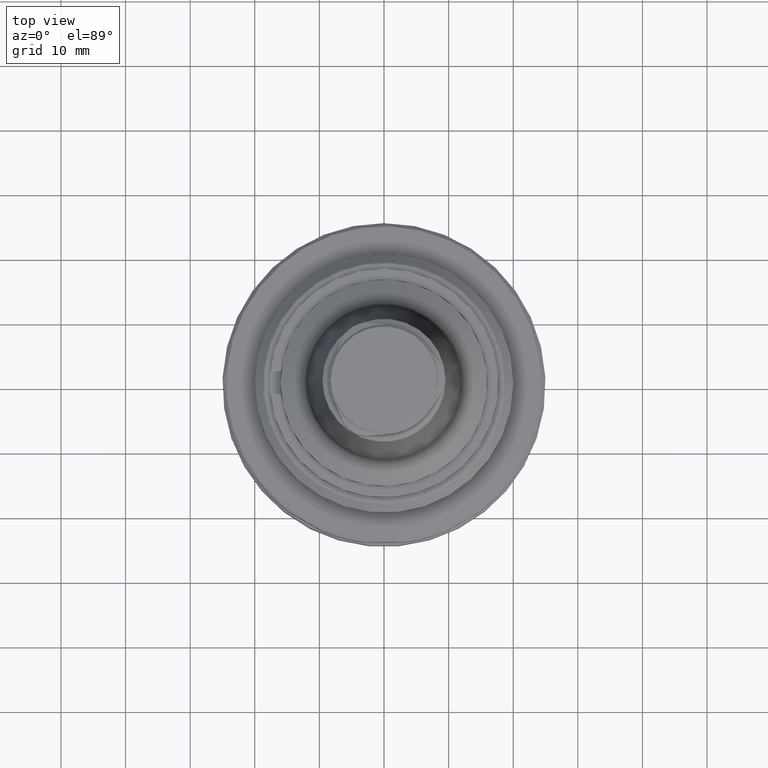
[diagram: clean part render]
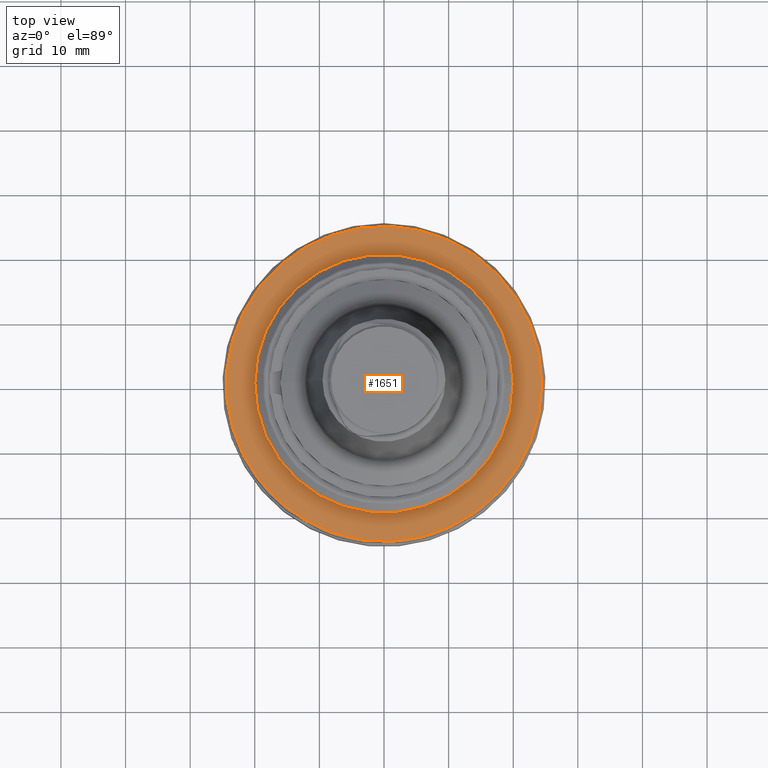
[diagram: same view with one face highlighted and labeled with its STEP entity id]
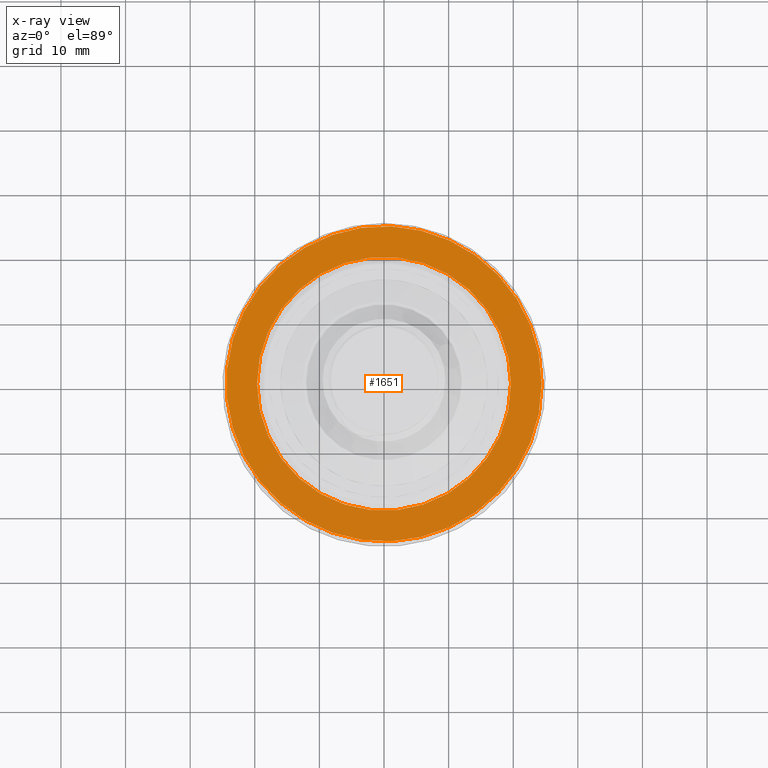
[diagram: x-ray of the same camera — body ghosted, the highlighted face saturated]
A machine part, top view. The second image highlights one B-rep face of the part: STEP entity #1651.
The next image is the same camera in x-ray: the body ghosted, the highlighted face saturated — about 0% of this face is hidden behind the body in this view.
In plain terms, the highlighted planar face has unit normal (-0, -0, -1).
Its self-contained STEP definition (entity closure, byte-faithful):
#39=PLANE('',#1830);
#546=ORIENTED_EDGE('',*,*,#927,.T.);
#547=ORIENTED_EDGE('',*,*,#928,.F.);
#927=EDGE_CURVE('',#1117,#1117,#1228,.T.);
#928=EDGE_CURVE('',#1118,#1118,#1229,.T.);
#1117=VERTEX_POINT('',#2858);
#1118=VERTEX_POINT('',#2861);
#1228=CIRCLE('',#1829,19.65);
#1229=CIRCLE('',#1831,24.3999999999999);
#1351=EDGE_LOOP('',(#546));
#1352=EDGE_LOOP('',(#547));
#1506=FACE_BOUND('',#1351,.T.);
#1507=FACE_BOUND('',#1352,.T.);
#1651=ADVANCED_FACE('',(#1506,#1507),#39,.F.);
#1829=AXIS2_PLACEMENT_3D('',#2857,#2185,#2186);
#1830=AXIS2_PLACEMENT_3D('',#2859,#2187,#2188);
#1831=AXIS2_PLACEMENT_3D('',#2860,#2189,#2190);
#2185=DIRECTION('',(-2.60563148754756E-18,-2.60563148754756E-18,-1.));
#2186=DIRECTION('',(1.,-6.12303176911189E-17,-2.60563148754756E-18));
#2187=DIRECTION('',(-2.60563148754756E-18,-2.60563148754756E-18,-1.));
#2188=DIRECTION('',(1.,-6.12303176911189E-17,-2.60563148754756E-18));
#2189=DIRECTION('',(-2.60563148754756E-18,-2.60563148754756E-18,-1.));
#2190=DIRECTION('',(1.,-6.12303176911189E-17,-2.60563148754756E-18));
#2857=CARTESIAN_POINT('',(1.56499901755386E-17,-2.18873044953995E-17,-1.00000000000001));
#2858=CARTESIAN_POINT('',(19.65,-1.22506304712589E-15,-1.00000000000001));
#2859=CARTESIAN_POINT('',(19.65,-1.22506304712589E-15,-1.00000000000001));
#2860=CARTESIAN_POINT('',(1.56499901755386E-17,-2.18873044953995E-17,-1.00000000000001));
#2861=CARTESIAN_POINT('',(24.3999999999999,-1.51590705615869E-15,-1.00000000000001));